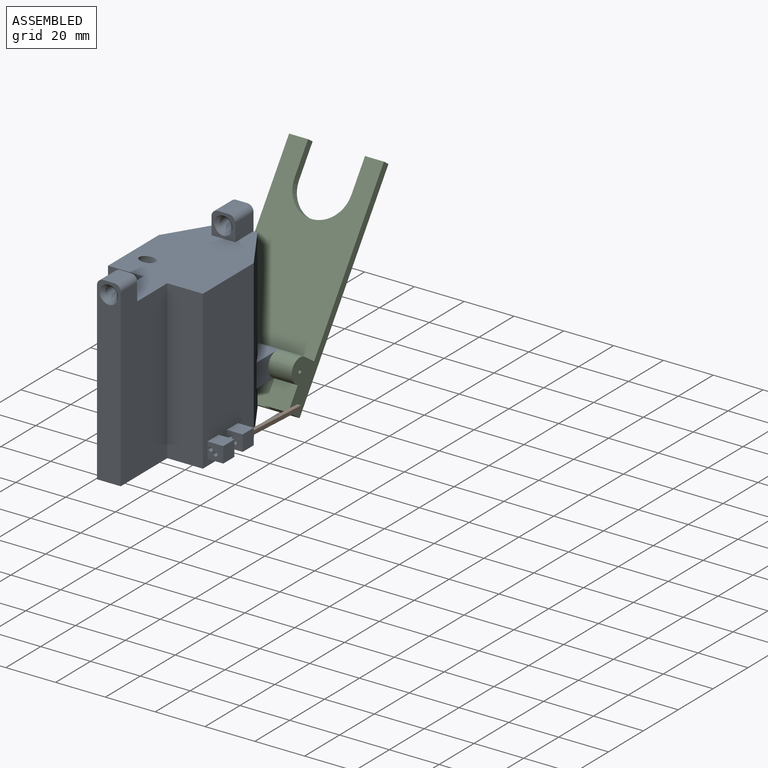
[diagram: assembled view]
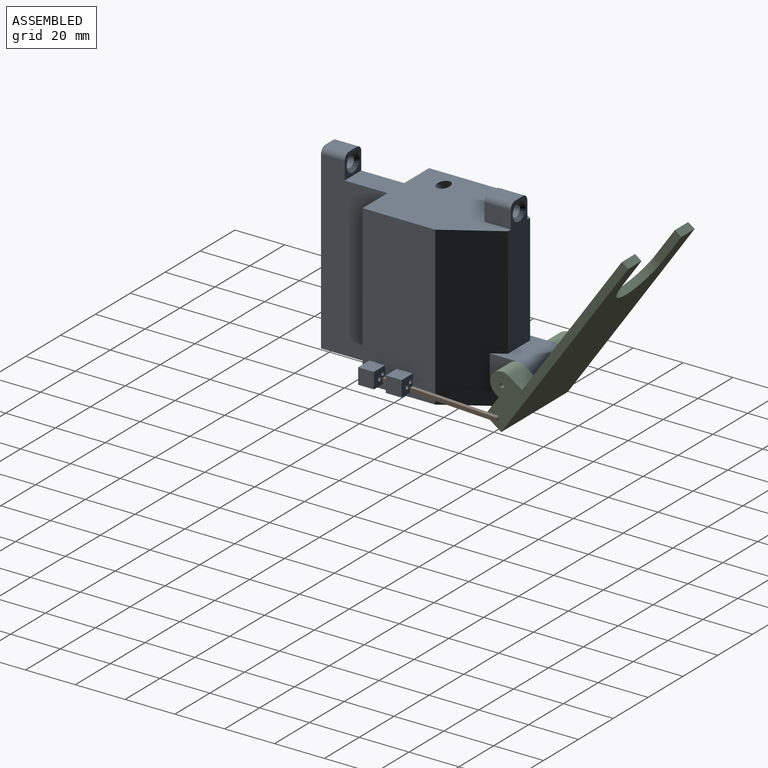
[diagram: assembled view, second angle]
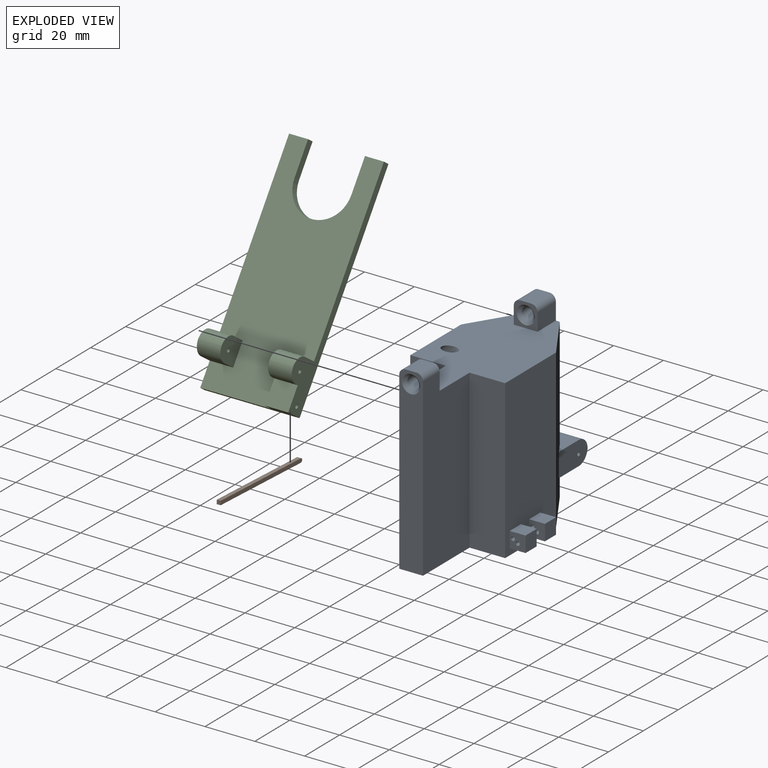
[diagram: exploded view]
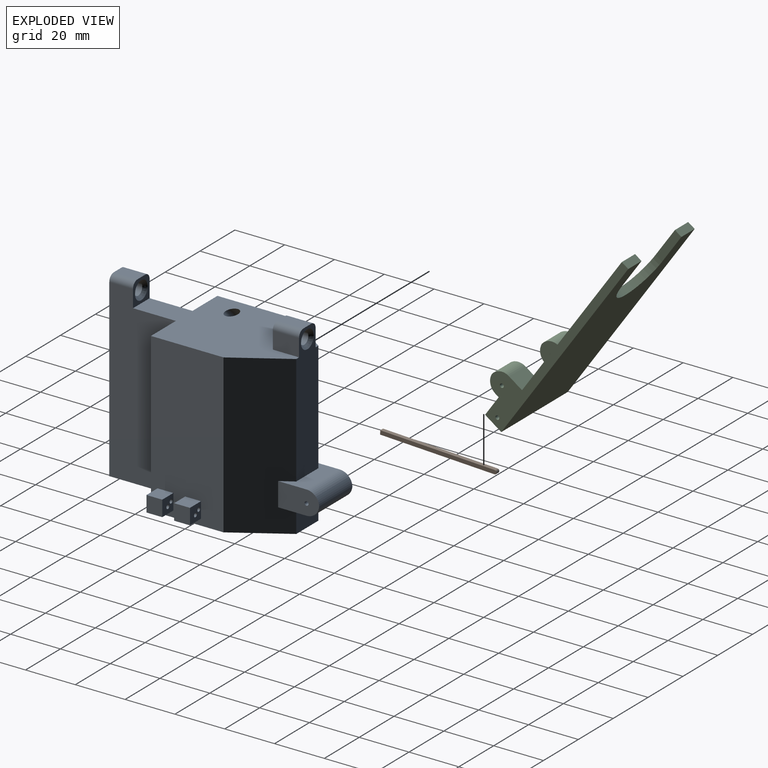
[diagram: exploded view, second angle]
ASSEMBLY  parts=3 mates=2
PART A: 51 faces, bbox 48.8x88.6x74 mm
  f0: plane 66.68x38.1mm, normal (0,0,1), area 1665.1mm2, adj f3,f4,f5,f7,f8,f9,f11,f12
  f1: plane 73.03x9.53mm, normal (0,-1,0), area 650.9mm2, adj f2,f7,f9,f10,f34,f37,f38
  f2: plane 76.2x38.1mm, normal (0,0,-1), area 1881.3mm2, adj f1,f4,f5,f6,f7,f9,f47,f48
  f3: plane 53.98x12.7mm, normal (0,1,0), area 610.6mm2, adj f0,f11,f12,f14,f32,f35,f36,f39
  f4: plane 63.5x29.15mm, normal (1,0,0), area 1770.3mm2, adj f0,f2,f17,f18,f19,f20,f22,f23
  f5: plane 64.5x30.15mm, normal (-1,0,0), area 1825.7mm2, adj f0,f2,f46,f48,f49
  f6: plane 12.7x9.53mm, normal (0,1,0), area 121mm2, adj f2,f41,f47,f48
  f7: plane 70.49x26.73mm, normal (1,0,0), area 1764mm2, adj f0,f1,f2,f8,f37,f50
  f8: plane 9.53x9.53mm, normal (0,1,0), area 46.1mm2, adj f0,f7,f9,f10,f31,f37,f38
  f9: plane 70.49x26.73mm, normal (-1,0,0), area 1764mm2, adj f0,f1,f2,f8,f38,f49
  f10: plane 9.53x4.45mm, normal (0,0,1), area 42.3mm2, adj f1,f8,f37,f38
  f11: plane 10.53x6.99mm, normal (1,0,0), area 73.6mm2, adj f0,f3,f13,f36
  f12: plane 10.53x6.99mm, normal (-1,0,0), area 73.6mm2, adj f0,f3,f13,f35
  f13: plane 9.53x9.53mm, normal (0,-1,0), area 46.1mm2, adj f0,f11,f12,f14,f33,f35,f36
  f14: plane 10.53x4.45mm, normal (0,0,1), area 46.8mm2, adj f3,f13,f35,f36
  f15: cylinder r=2.38mm len=7.99mm, axis (0,-1,0), area 119.6mm2, adj f32,f33
  f16: cylinder r=2.38mm len=6.99mm, axis (0,-1,0), area 104.5mm2, adj f31,f34
  f17: plane 6.35x6.35mm, normal (0,0,1), area 40.3mm2, adj f4,f18,f20,f21
  f18: plane 6.35x6.35mm, normal (0,-1,0), area 36.4mm2, adj f4,f17,f19,f21,f29,f30
  f19: plane 6.35x6.35mm, normal (0,0,-1), area 40.3mm2, adj f4,f18,f20,f21
  f20: plane 6.35x6.35mm, normal (0,1,0), area 36.4mm2, adj f4,f17,f19,f21,f29,f30
  f21: plane 6.35x6.35mm, normal (1,0,0), area 40.3mm2, adj f17,f18,f19,f20
  f22: plane 6.35x6.35mm, normal (0,0,1), area 40.3mm2, adj f4,f23,f25,f26
  f23: plane 6.35x6.35mm, normal (0,-1,0), area 36.4mm2, adj f4,f22,f24,f26,f27,f28
  f24: plane 6.35x6.35mm, normal (0,0,-1), area 40.3mm2, adj f4,f23,f25,f26
  f25: plane 6.35x6.35mm, normal (0,1,0), area 36.4mm2, adj f4,f22,f24,f26,f27,f28
  f26: plane 6.35x6.35mm, normal (1,0,0), area 40.3mm2, adj f22,f23,f24,f25
  f27: cylinder r=0.79mm len=6.35mm, axis (0,1,0), area 31.7mm2, adj f23,f25
  f28: cylinder r=0.79mm len=6.35mm, axis (0,1,0), area 31.7mm2, adj f23,f25
  f29: cylinder r=0.79mm len=6.35mm, axis (0,1,0), area 31.7mm2, adj f18,f20
  f30: cylinder r=0.79mm len=6.35mm, axis (0,1,0), area 31.7mm2, adj f18,f20
  f31: cone r=2.38mm half-angle=45deg, axis (0,1,0), area 34mm2, adj f8,f16
  f32: cone r=3.65mm half-angle=45deg, axis (0,1,0), area 34mm2, adj f3,f15
  f33: cone r=3.65mm half-angle=45deg, axis (0,-1,0), area 34mm2, adj f13,f15
  f34: cone r=2.38mm half-angle=45deg, axis (0,-1,0), area 34mm2, adj f1,f16
  f35: cylinder r=2.54mm len=10.53mm, axis (0,1,0), area 42mm2, adj f3,f12,f13,f14
  f36: cylinder r=2.54mm len=10.53mm, axis (0,-1,0), area 42mm2, adj f3,f11,f13,f14
  f37: cylinder r=2.54mm len=9.53mm, axis (0,-1,0), area 38mm2, adj f1,f7,f8,f10
  f38: cylinder r=2.54mm len=9.53mm, axis (0,1,0), area 38mm2, adj f1,f8,f9,f10
  f39: plane 19.05x11.43mm, normal (0,0,1), area 137.1mm2, adj f3,f40,f42,f43,f47,f48
  f40: plane 16.5x9.53mm, normal (1,0,0), area 144.2mm2, adj f39,f41,f43,f44,f45,f47
  f41: plane 19.05x11.43mm, normal (0,0,-1), area 137.1mm2, adj f6,f40,f42,f44,f47,f48
  f42: plane 16.5x9.53mm, normal (-1,0,0), area 144.2mm2, adj f39,f41,f43,f44,f45,f48
  f43: cylinder r=5.08mm len=19.05mm, axis (-1,0,0), area 146mm2, adj f39,f40,f42,f44
  f44: cylinder r=5.08mm len=19.05mm, axis (1,0,0), area 146mm2, adj f40,f41,f42,f43
  f45: cylinder r=0.79mm len=19.05mm, axis (1,0,0), area 95mm2, adj f40,f42
  f46: cylinder r=2.38mm len=14.7mm, axis (-0.71,0,-0.71), area 168mm2, adj f0,f5
  f47: plane 63.5x20.32mm, normal (0.85,0.53,0), area 1464.5mm2, adj f0,f2,f3,f4,f6,f39,f40,f41
  f48: plane 63.5x20.32mm, normal (-0.85,0.53,0), area 1464.5mm2, adj f0,f2,f3,f5,f6,f39,f41,f42
  f49: plane 63.5x14.29mm, normal (0,-1,0), area 907.3mm2, adj f0,f2,f5,f9
  f50: plane 63.5x14.29mm, normal (0,-1,0), area 907.3mm2, adj f0,f2,f4,f7
PART B: 6 faces, bbox 1.6x46.8x3.7 mm
  f0: cylinder r=0.79mm len=1.59mm, axis (-1,0,0), area 4mm2, adj f1,f3,f4,f5
  f1: plane 45.92x2.14mm, normal (0,0.05,1), area 73mm2, adj f0,f2,f4,f5
  f2: plane 1.59x1.59mm, normal (0,-1,0.05), area 2.5mm2, adj f1,f3,f4,f5
  f3: plane 45.92x2.14mm, normal (0,-0.05,-1), area 73mm2, adj f0,f2,f4,f5
  f4: plane 46.76x3.73mm, normal (1,0,0), area 74mm2, adj f0,f1,f2,f3
  f5: plane 46.76x3.73mm, normal (-1,0,0), area 74mm2, adj f0,f1,f2,f3
PART C: 24 faces, bbox 38.1x14.6x88.9 mm
  f0: plane 7.62x3.18mm, normal (0,0,1), area 24.2mm2, adj f1,f2,f5,f23
  f1: plane 88.9x38.1mm, normal (0,1,0), area 2872.3mm2, adj f0,f3,f4,f5,f6,f21,f22,f23
  f2: plane 88.9x38.1mm, normal (0,-1,0), area 2603mm2, adj f0,f3,f4,f5,f6,f7,f8,f9
  f3: plane 88.9x14.6mm, normal (-1,0,0), area 378.1mm2, adj f1,f2,f4,f6,f8,f9,f15,f16
  f4: plane 38.1x7.94mm, normal (0,0,-1), area 165.8mm2, adj f1,f2,f3,f5,f11,f19
  f5: plane 88.9x14.6mm, normal (1,0,0), area 421.5mm2, adj f0,f1,f2,f4,f10,f12,f13,f14
  f6: plane 7.62x3.18mm, normal (0,0,1), area 24.2mm2, adj f1,f2,f3,f22
  f7: plane 11.42x9.53mm, normal (1,0,0), area 95.8mm2, adj f2,f8,f9,f15,f16,f18
  f8: plane 9.42x6.35mm, normal (0,0,1), area 59.8mm2, adj f2,f3,f7,f16
  f9: plane 9.42x6.35mm, normal (0,0,-1), area 59.8mm2, adj f2,f3,f7,f15
  f10: plane 9.42x6.35mm, normal (0,0,1), area 59.8mm2, adj f2,f5,f11,f13
  f11: plane 19.05x11.42mm, normal (-1,0,0), area 139.2mm2, adj f2,f4,f10,f12,f13,f14,f17,f19
  f12: plane 9.42x1.59mm, normal (0,0,-1), area 15mm2, adj f5,f11,f14,f19
  f13: cylinder r=5.08mm len=9.42mm, axis (1,0,0), area 72.2mm2, adj f5,f10,f11,f14
  f14: cylinder r=5.08mm len=9.42mm, axis (-1,0,0), area 72.2mm2, adj f5,f11,f12,f13
  f15: cylinder r=5.08mm len=9.42mm, axis (-1,0,0), area 72.2mm2, adj f3,f7,f9,f16
  f16: cylinder r=5.08mm len=9.42mm, axis (1,0,0), area 72.2mm2, adj f3,f7,f8,f15
  f17: cylinder r=0.79mm len=9.42mm, axis (1,0,0), area 47mm2, adj f5,f11
  f18: cylinder r=0.79mm len=9.42mm, axis (1,0,0), area 47mm2, adj f3,f7
  f19: plane 9.53x9.42mm, normal (0,-1,0), area 89.8mm2, adj f4,f5,f11,f12
  f20: cylinder r=0.79mm len=9.42mm, axis (1,0,0), area 47mm2, adj f5,f11
  f21: cylinder r=11.43mm len=22.86mm, axis (0,1,0), area 114mm2, adj f1,f2,f22,f23
  f22: plane 13.54x3.18mm, normal (1,0,0), area 43mm2, adj f1,f2,f6,f21
  f23: plane 13.54x3.18mm, normal (-1,0,0), area 43mm2, adj f0,f1,f2,f21
PLACE A t=(11.41,-2.52,1.76)mm fixed
PLACE B t=(11.31,-9.77,0.61)mm
PLACE C rot(axis=(-1,0,0),35deg) t=(11.31,27.04,-3.55)mm
MATE revolute A.f43 <-> C.f13  axis (1,0,0) through (39.98,3.83,-47.77)mm
MATE revolute C.f20 <-> B.f0  axis (1,0,0) through (49.41,2.03,-59.84)mm
